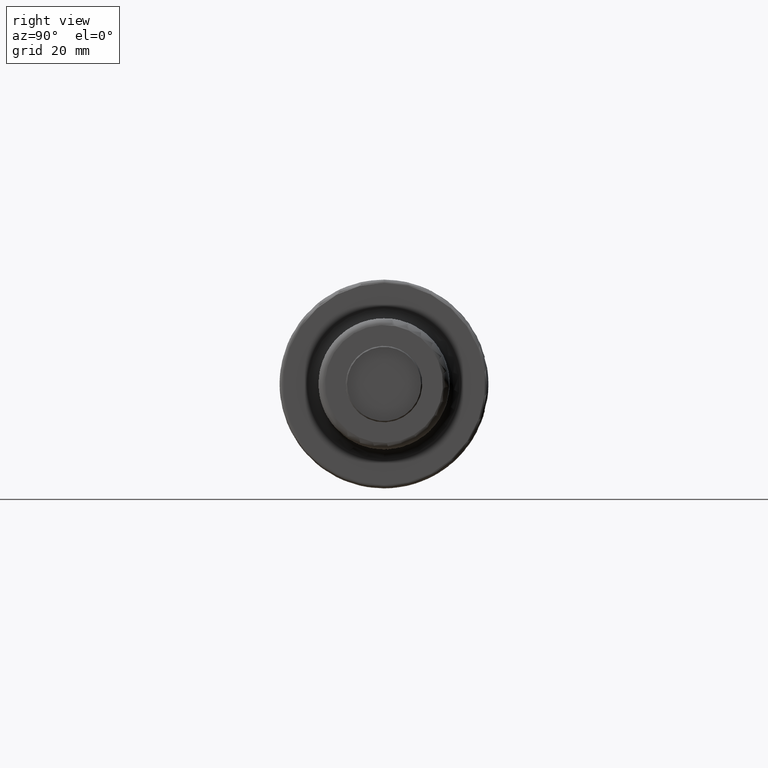
[diagram: clean part render]
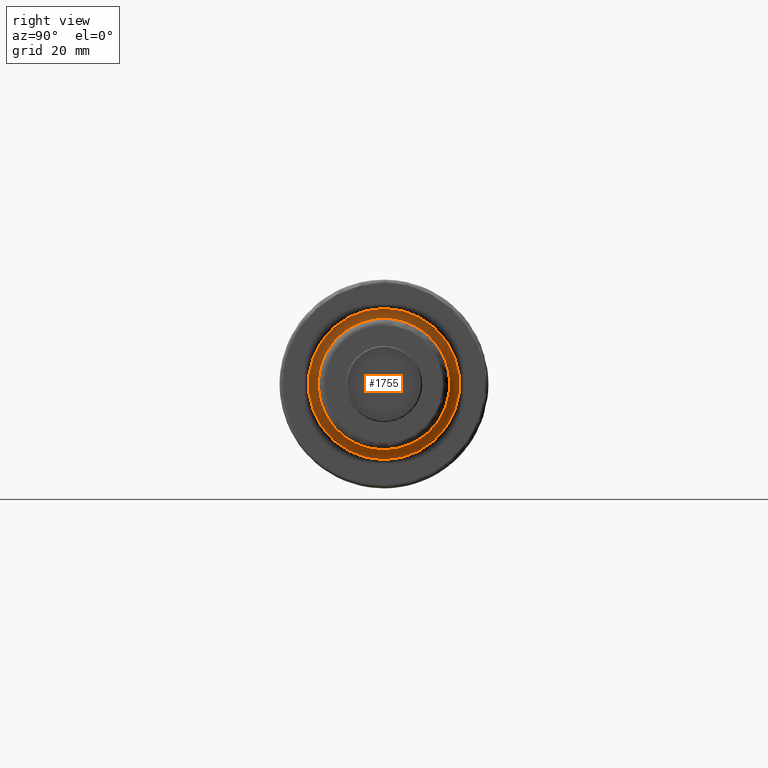
[diagram: same view with one face highlighted and labeled with its STEP entity id]
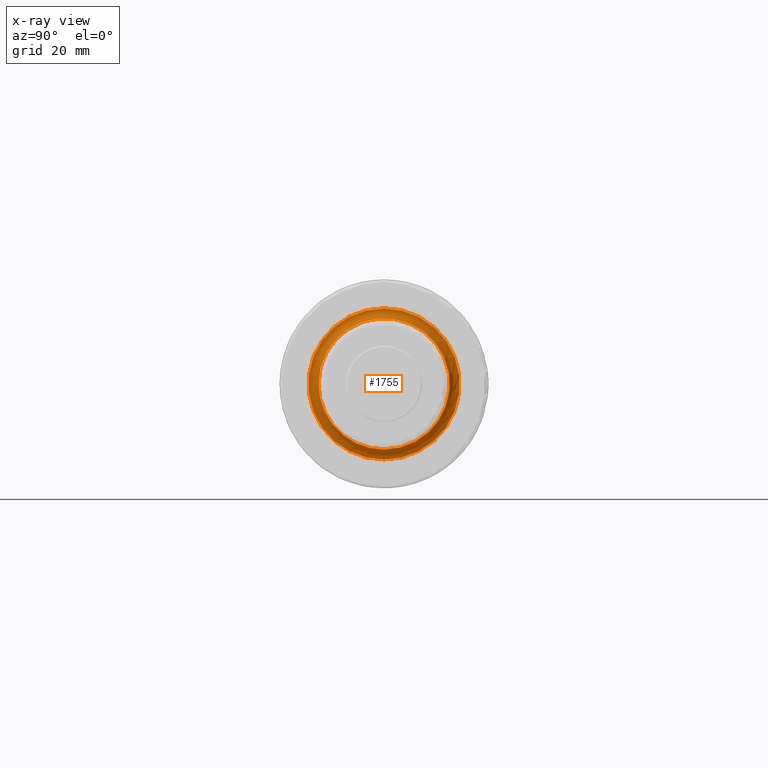
[diagram: x-ray of the same camera — body ghosted, the highlighted face saturated]
A machine part, right view. The second image highlights one B-rep face of the part: STEP entity #1755.
The next image is the same camera in x-ray: the body ghosted, the highlighted face saturated — about 2% of this face is hidden behind the body in this view.
In plain terms, the highlighted toroidal blend (fillet) surface has major radius 22.8 mm and minor (blend) radius 3 mm.
Its self-contained STEP definition (entity closure, byte-faithful):
#110=TOROIDAL_SURFACE('',#2007,22.8,3.);
#177=FACE_OUTER_BOUND('',#286,.T.);
#286=EDGE_LOOP('',(#1228,#1229,#1230,#1231,#1232));
#410=CIRCLE('',#2008,19.8);
#411=CIRCLE('',#2009,3.);
#412=CIRCLE('',#2010,22.8);
#413=CIRCLE('',#2011,19.8);
#768=VERTEX_POINT('',#2930);
#769=VERTEX_POINT('',#2931);
#770=VERTEX_POINT('',#2933);
#949=EDGE_CURVE('',#768,#769,#410,.T.);
#950=EDGE_CURVE('',#769,#770,#411,.T.);
#951=EDGE_CURVE('',#770,#770,#412,.T.);
#952=EDGE_CURVE('',#769,#768,#413,.T.);
#1228=ORIENTED_EDGE('',*,*,#949,.T.);
#1229=ORIENTED_EDGE('',*,*,#950,.T.);
#1230=ORIENTED_EDGE('',*,*,#951,.T.);
#1231=ORIENTED_EDGE('',*,*,#950,.F.);
#1232=ORIENTED_EDGE('',*,*,#952,.T.);
#1755=ADVANCED_FACE('',(#177),#110,.F.);
#2007=AXIS2_PLACEMENT_3D('',#2929,#2277,#2278);
#2008=AXIS2_PLACEMENT_3D('',#2932,#2279,#2280);
#2009=AXIS2_PLACEMENT_3D('',#2934,#2281,#2282);
#2010=AXIS2_PLACEMENT_3D('',#2935,#2283,#2284);
#2011=AXIS2_PLACEMENT_3D('',#2936,#2285,#2286);
#2277=DIRECTION('center_axis',(-1.,0.,0.));
#2278=DIRECTION('ref_axis',(0.,0.,1.));
#2279=DIRECTION('center_axis',(-1.,0.,0.));
#2280=DIRECTION('ref_axis',(0.,-1.,-1.22464679914735E-16));
#2281=DIRECTION('center_axis',(0.,-1.,1.22464679914735E-16));
#2282=DIRECTION('ref_axis',(0.,-1.22464679914735E-16,-1.));
#2283=DIRECTION('center_axis',(1.,0.,0.));
#2284=DIRECTION('ref_axis',(0.,-1.,-1.22464679914735E-16));
#2285=DIRECTION('center_axis',(-1.,0.,0.));
#2286=DIRECTION('ref_axis',(0.,-1.,-1.22464679914735E-16));
#2929=CARTESIAN_POINT('Origin',(30.,0.,0.));
#2930=CARTESIAN_POINT('',(30.,-19.8,-2.42480066231176E-15));
#2931=CARTESIAN_POINT('',(30.,-2.42480066231176E-15,-19.8));
#2932=CARTESIAN_POINT('Origin',(30.,0.,0.));
#2933=CARTESIAN_POINT('',(27.,-2.79219470205597E-15,-22.8));
#2934=CARTESIAN_POINT('Origin',(30.,-2.79219470205597E-15,-22.8));
#2935=CARTESIAN_POINT('Origin',(27.,0.,0.));
#2936=CARTESIAN_POINT('Origin',(30.,0.,0.));